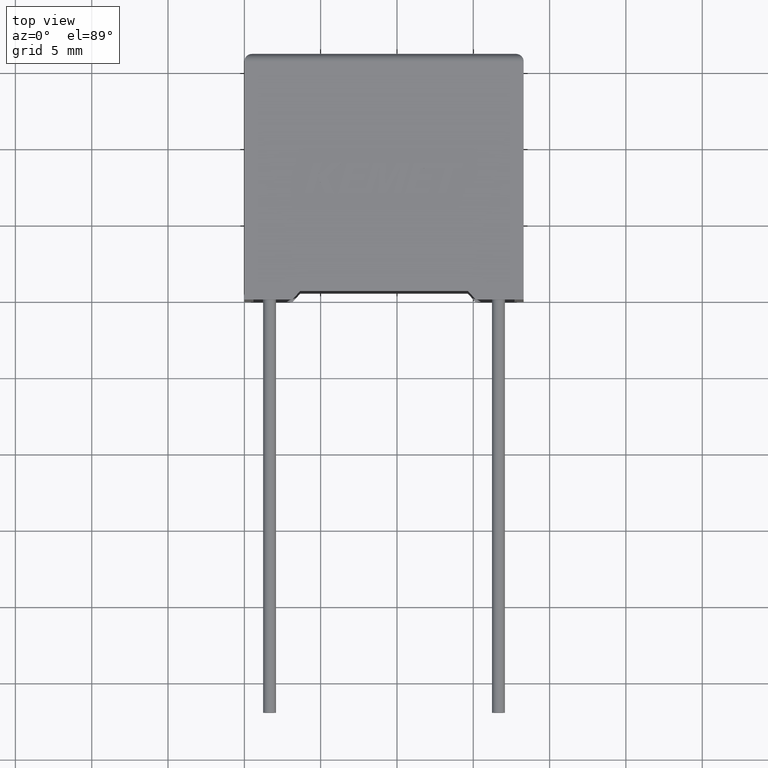
[diagram: clean part render]
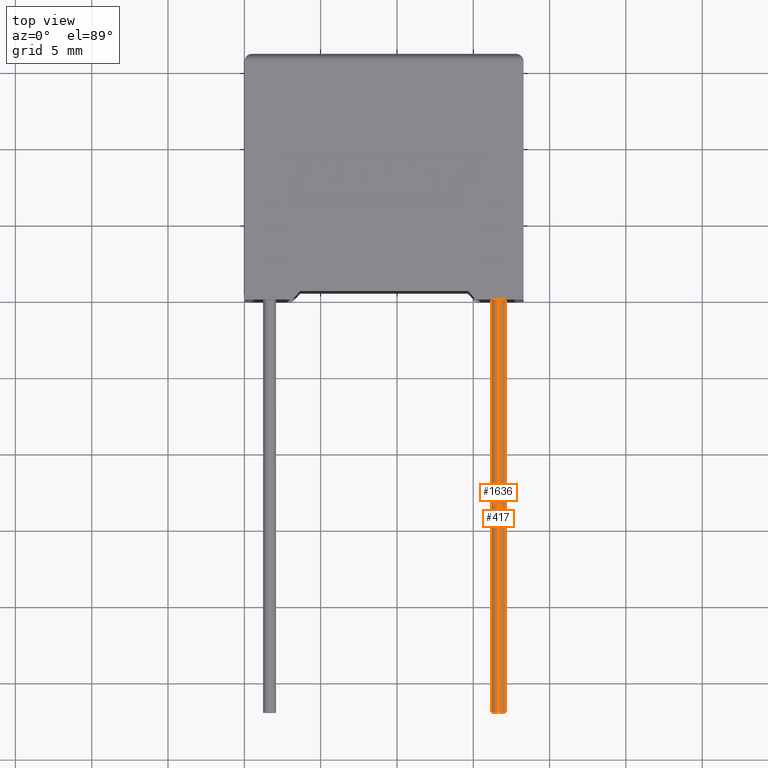
[diagram: same view with one multi-face feature highlighted, each face labeled with its STEP entity id]
A machine part, top view. The highlighted faces form ONE feature: a constant-radius fillet chain: 2 tangent blend faces with common blend radius 0.425 mm. The faces share edges in the B-rep.
Their STEP definitions:
[1] entity #1636 (Cylinder):
#100 = DIRECTION ( 'NONE',  ( -0.000000000000000000, 1.000000000000000000, -0.000000000000000000 ) ) ;
#151 = LINE ( 'NONE', #2262, #1612 ) ;
#191 = AXIS2_PLACEMENT_3D ( 'NONE', #589, #367, #2101 ) ;
#256 = DIRECTION ( 'NONE',  ( -0.000000000000000000, 1.000000000000000000, -0.000000000000000000 ) ) ;
#286 = VECTOR ( 'NONE', #100, 1000.000000000000000 ) ;
#299 = CARTESIAN_POINT ( 'NONE',  ( 16.64999999999999858, -27.00000000000000000, 5.099999999999999645 ) ) ;
#367 = DIRECTION ( 'NONE',  ( -0.000000000000000000, 1.000000000000000000, -0.000000000000000000 ) ) ;
#482 = ORIENTED_EDGE ( 'NONE', *, *, #2781, .T. ) ;
#498 = ORIENTED_EDGE ( 'NONE', *, *, #2858, .T. ) ;
#504 = DIRECTION ( 'NONE',  ( 0.000000000000000000, 0.000000000000000000, -1.000000000000000000 ) ) ;
#508 = DIRECTION ( 'NONE',  ( 0.000000000000000000, 0.000000000000000000, 1.000000000000000000 ) ) ;
#543 = CARTESIAN_POINT ( 'NONE',  ( 16.64999999999999858, 0.7500000000000006661, 5.099999999999999645 ) ) ;
#589 = CARTESIAN_POINT ( 'NONE',  ( 16.64999999999999858, -27.00000000000000000, 5.099999999999999645 ) ) ;
#654 = EDGE_CURVE ( 'NONE', #2519, #1574, #2740, .T. ) ;
#808 = DIRECTION ( 'NONE',  ( -0.000000000000000000, 1.000000000000000000, -0.000000000000000000 ) ) ;
#966 = CIRCLE ( 'NONE', #191, 0.4250000000000000444 ) ;
#1222 = FACE_OUTER_BOUND ( 'NONE', #1339, .T. ) ;
#1269 = LINE ( 'NONE', #2760, #286 ) ;
#1339 = EDGE_LOOP ( 'NONE', ( #2280, #498, #482, #1475 ) ) ;
#1419 = VERTEX_POINT ( 'NONE', #1752 ) ;
#1475 = ORIENTED_EDGE ( 'NONE', *, *, #654, .T. ) ;
#1500 = AXIS2_PLACEMENT_3D ( 'NONE', #543, #1683, #504 ) ;
#1574 = VERTEX_POINT ( 'NONE', #2576 ) ;
#1612 = VECTOR ( 'NONE', #808, 1000.000000000000000 ) ;
#1636 = ADVANCED_FACE ( 'NONE', ( #1222 ), #2619, .T. ) ;
#1683 = DIRECTION ( 'NONE',  ( 0.000000000000000000, -1.000000000000000000, 0.000000000000000000 ) ) ;
#1752 = CARTESIAN_POINT ( 'NONE',  ( 16.64999999999999858, -27.00000000000000000, 4.674999999999999822 ) ) ;
#2101 = DIRECTION ( 'NONE',  ( 0.000000000000000000, 0.000000000000000000, -1.000000000000000000 ) ) ;
#2115 = EDGE_CURVE ( 'NONE', #1419, #1574, #1269, .T. ) ;
#2253 = AXIS2_PLACEMENT_3D ( 'NONE', #299, #256, #508 ) ;
#2262 = CARTESIAN_POINT ( 'NONE',  ( 16.64999999999999858, -27.00000000000000000, 5.524999999999999467 ) ) ;
#2276 = CARTESIAN_POINT ( 'NONE',  ( 16.64999999999999858, -27.00000000000000000, 5.524999999999999467 ) ) ;
#2280 = ORIENTED_EDGE ( 'NONE', *, *, #2115, .F. ) ;
#2410 = VERTEX_POINT ( 'NONE', #2276 ) ;
#2519 = VERTEX_POINT ( 'NONE', #2906 ) ;
#2576 = CARTESIAN_POINT ( 'NONE',  ( 16.64999999999999858, 0.7500000000000006661, 4.674999999999999822 ) ) ;
#2619 = CYLINDRICAL_SURFACE ( 'NONE', #2253, 0.4250000000000000444 ) ;
#2740 = CIRCLE ( 'NONE', #1500, 0.4250000000000000444 ) ;
#2760 = CARTESIAN_POINT ( 'NONE',  ( 16.64999999999999858, -27.00000000000000000, 4.674999999999999822 ) ) ;
#2781 = EDGE_CURVE ( 'NONE', #2410, #2519, #151, .T. ) ;
#2858 = EDGE_CURVE ( 'NONE', #1419, #2410, #966, .T. ) ;
#2906 = CARTESIAN_POINT ( 'NONE',  ( 16.64999999999999858, 0.7500000000000006661, 5.524999999999999467 ) ) ;
[2] entity #417 (Cylinder):
#25 = EDGE_CURVE ( 'NONE', #2410, #1419, #893, .T. ) ;
#45 = CYLINDRICAL_SURFACE ( 'NONE', #2486, 0.4250000000000000444 ) ;
#100 = DIRECTION ( 'NONE',  ( -0.000000000000000000, 1.000000000000000000, -0.000000000000000000 ) ) ;
#121 = EDGE_LOOP ( 'NONE', ( #468, #178, #2900, #2612 ) ) ;
#129 = AXIS2_PLACEMENT_3D ( 'NONE', #575, #1515, #2249 ) ;
#151 = LINE ( 'NONE', #2262, #1612 ) ;
#178 = ORIENTED_EDGE ( 'NONE', *, *, #2115, .T. ) ;
#286 = VECTOR ( 'NONE', #100, 1000.000000000000000 ) ;
#289 = FACE_OUTER_BOUND ( 'NONE', #121, .T. ) ;
#417 = ADVANCED_FACE ( 'NONE', ( #289 ), #45, .T. ) ;
#468 = ORIENTED_EDGE ( 'NONE', *, *, #25, .T. ) ;
#575 = CARTESIAN_POINT ( 'NONE',  ( 16.64999999999999858, 0.7500000000000006661, 5.099999999999999645 ) ) ;
#808 = DIRECTION ( 'NONE',  ( -0.000000000000000000, 1.000000000000000000, -0.000000000000000000 ) ) ;
#879 = DIRECTION ( 'NONE',  ( 0.000000000000000000, 0.000000000000000000, -1.000000000000000000 ) ) ;
#893 = CIRCLE ( 'NONE', #986, 0.4250000000000000444 ) ;
#986 = AXIS2_PLACEMENT_3D ( 'NONE', #2985, #1520, #879 ) ;
#1269 = LINE ( 'NONE', #2760, #286 ) ;
#1285 = EDGE_CURVE ( 'NONE', #1574, #2519, #2802, .T. ) ;
#1419 = VERTEX_POINT ( 'NONE', #1752 ) ;
#1456 = CARTESIAN_POINT ( 'NONE',  ( 16.64999999999999858, -27.00000000000000000, 5.099999999999999645 ) ) ;
#1515 = DIRECTION ( 'NONE',  ( 0.000000000000000000, -1.000000000000000000, 0.000000000000000000 ) ) ;
#1520 = DIRECTION ( 'NONE',  ( -0.000000000000000000, 1.000000000000000000, -0.000000000000000000 ) ) ;
#1574 = VERTEX_POINT ( 'NONE', #2576 ) ;
#1612 = VECTOR ( 'NONE', #808, 1000.000000000000000 ) ;
#1752 = CARTESIAN_POINT ( 'NONE',  ( 16.64999999999999858, -27.00000000000000000, 4.674999999999999822 ) ) ;
#2115 = EDGE_CURVE ( 'NONE', #1419, #1574, #1269, .T. ) ;
#2133 = DIRECTION ( 'NONE',  ( -0.000000000000000000, 1.000000000000000000, -0.000000000000000000 ) ) ;
#2249 = DIRECTION ( 'NONE',  ( 0.000000000000000000, 0.000000000000000000, -1.000000000000000000 ) ) ;
#2262 = CARTESIAN_POINT ( 'NONE',  ( 16.64999999999999858, -27.00000000000000000, 5.524999999999999467 ) ) ;
#2276 = CARTESIAN_POINT ( 'NONE',  ( 16.64999999999999858, -27.00000000000000000, 5.524999999999999467 ) ) ;
#2392 = DIRECTION ( 'NONE',  ( 0.000000000000000000, 0.000000000000000000, 1.000000000000000000 ) ) ;
#2410 = VERTEX_POINT ( 'NONE', #2276 ) ;
#2486 = AXIS2_PLACEMENT_3D ( 'NONE', #1456, #2133, #2392 ) ;
#2519 = VERTEX_POINT ( 'NONE', #2906 ) ;
#2576 = CARTESIAN_POINT ( 'NONE',  ( 16.64999999999999858, 0.7500000000000006661, 4.674999999999999822 ) ) ;
#2612 = ORIENTED_EDGE ( 'NONE', *, *, #2781, .F. ) ;
#2760 = CARTESIAN_POINT ( 'NONE',  ( 16.64999999999999858, -27.00000000000000000, 4.674999999999999822 ) ) ;
#2781 = EDGE_CURVE ( 'NONE', #2410, #2519, #151, .T. ) ;
#2802 = CIRCLE ( 'NONE', #129, 0.4250000000000000444 ) ;
#2900 = ORIENTED_EDGE ( 'NONE', *, *, #1285, .T. ) ;
#2906 = CARTESIAN_POINT ( 'NONE',  ( 16.64999999999999858, 0.7500000000000006661, 5.524999999999999467 ) ) ;
#2985 = CARTESIAN_POINT ( 'NONE',  ( 16.64999999999999858, -27.00000000000000000, 5.099999999999999645 ) ) ;